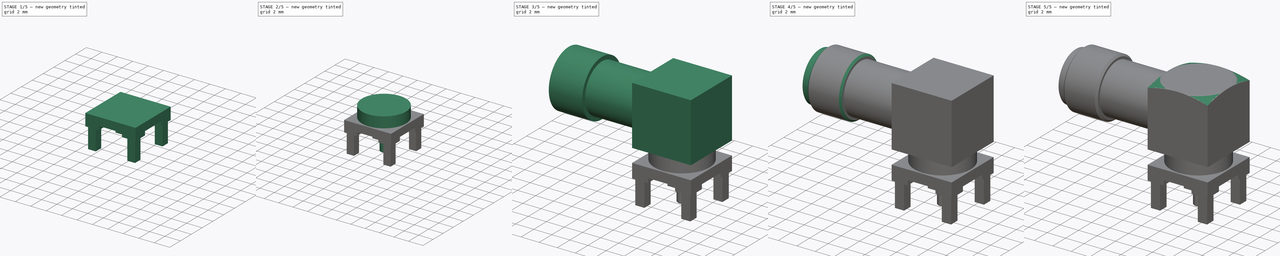
[diagram: build sequence overview — one tinted view per stage of 5, left to right]
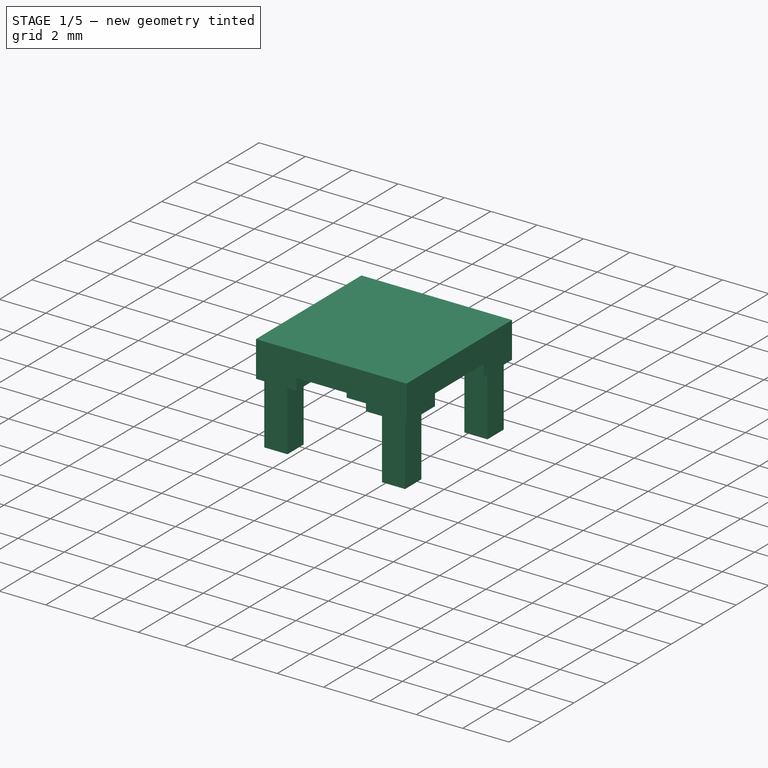
[diagram: stage 1 of 5 — iso view after this stage's code; geometry added in this stage tinted green]
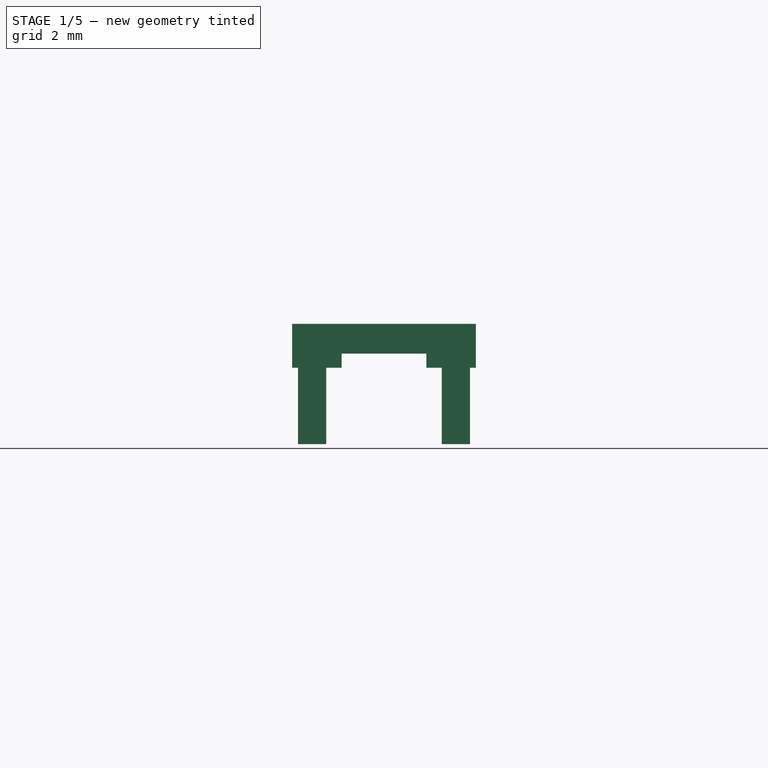
[diagram: stage 1 of 5 — front view after this stage's code; geometry added in this stage tinted green]
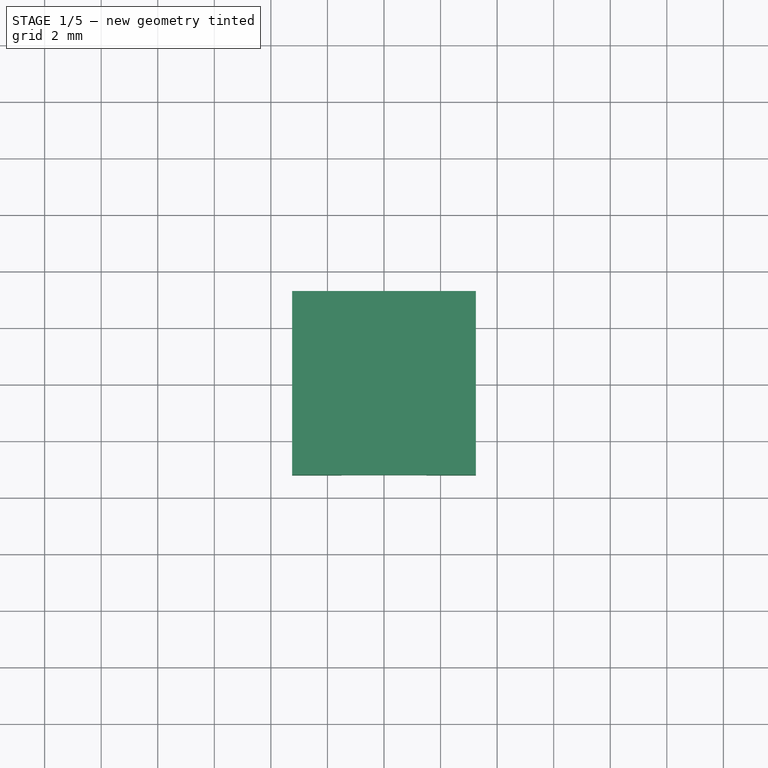
[diagram: stage 1 of 5 — top view after this stage's code; geometry added in this stage tinted green]
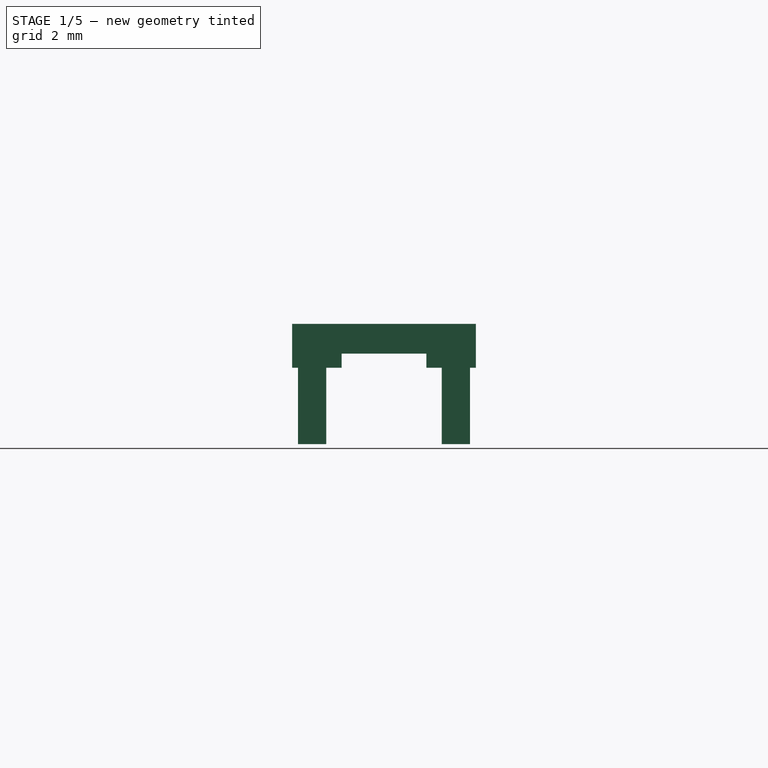
[diagram: stage 1 of 5 — right view after this stage's code; geometry added in this stage tinted green]
FCSTD DOCUMENT  (FreeCAD 0.19RUnknown)
Label: HJ-SMA003-v2
License: All rights reserved
LicenseURL: http://en.wikipedia.org/wiki/All_rights_reserved
objects: Sketcher::SketchObject×12, PartDesign::Pad×9, PartDesign::Chamfer×3, PartDesign::Pocket×2, PartDesign::Groove×1, PartDesign::Body×1
note: 43 computed .brp shape members not serialized (recipe doc carries the construction recipe); baked Part::Feature solids carry a one-line shape summary decoded from their .brp

FEATURE [Sketcher::SketchObject] Sketch
  AttachmentOffset = pos=(0,0,0.5) rot=(0,0,1;0rad)
  FullyConstrained = true
  MapMode = 5
  Placement = pos=(0,0,0.5) rot=(0,0,1;0rad)
  Support = -> [XY_Plane]
  sketch-geometry (4):
    g0: LineSegment StartX=-3.25 StartY=3.25 StartZ=0 EndX=3.25 EndY=3.25 EndZ=0
    g1: LineSegment StartX=3.25 StartY=3.25 StartZ=0 EndX=3.25 EndY=-3.25 EndZ=0
    g2: LineSegment StartX=3.25 StartY=-3.25 StartZ=0 EndX=-3.25 EndY=-3.25 EndZ=0
    g3: LineSegment StartX=-3.25 StartY=-3.25 StartZ=0 EndX=-3.25 EndY=3.25 EndZ=0
  constraints (11):
    c: Coincident(g0,g1)
    c: Coincident(g1,g2)
    c: Coincident(g2,g3)
    c: Coincident(g3,g0)
    c: Horizontal(g0)
    c: Horizontal(g2)
    c: Vertical(g1)
    c: Vertical(g3)
    c: Equal(g0,g1)
    c: Symmetric(g0,g1,g-1)
    c: DistanceY(g1,g1) = 6.5
FEATURE [PartDesign::Pad] Pad
  Direction = (1,1,1)
  Length = 1.05
  Length2 = 100
  Profile = -> Sketch
  Type = 0
FEATURE [Sketcher::SketchObject] Sketch001
  ExternalGeometry = -> [Pad]
  FullyConstrained = true
  MapMode = 5
  Placement = pos=(0,0,0.5) rot=(1,0,0;3.14159rad)
  Support = -> [Pad]
  sketch-geometry (16):
    g0: LineSegment StartX=-3.25 StartY=3.25 StartZ=0 EndX=-1.5 EndY=3.25 EndZ=0
    g1: LineSegment StartX=-1.5 StartY=3.25 StartZ=0 EndX=-1.5 EndY=1.5 EndZ=0
    g2: LineSegment StartX=-1.5 StartY=1.5 StartZ=0 EndX=-3.25 EndY=1.5 EndZ=0
    g3: LineSegment StartX=-3.25 StartY=1.5 StartZ=0 EndX=-3.25 EndY=3.25 EndZ=0
    g4: LineSegment StartX=-3.25 StartY=-3.25 StartZ=0 EndX=-1.5 EndY=-3.25 EndZ=0
    g5: LineSegment StartX=-1.5 StartY=-3.25 StartZ=0 EndX=-1.5 EndY=-1.5 EndZ=0
    g6: LineSegment StartX=-1.5 StartY=-1.5 StartZ=0 EndX=-3.25 EndY=-1.5 EndZ=0
    g7: LineSegment StartX=-3.25 StartY=-1.5 StartZ=0 EndX=-3.25 EndY=-3.25 EndZ=0
    g8: LineSegment StartX=3.25 StartY=-3.25 StartZ=0 EndX=1.5 EndY=-3.25 EndZ=0
    g9: LineSegment StartX=1.5 StartY=-3.25 StartZ=0 EndX=1.5 EndY=-1.5 EndZ=0
    g10: LineSegment StartX=1.5 StartY=-1.5 StartZ=0 EndX=3.25 EndY=-1.5 EndZ=0
    g11: LineSegment StartX=3.25 StartY=-1.5 StartZ=0 EndX=3.25 EndY=-3.25 EndZ=0
    g12: LineSegment StartX=3.25 StartY=3.25 StartZ=0 EndX=1.5 EndY=3.25 EndZ=0
    g13: LineSegment StartX=1.5 StartY=3.25 StartZ=0 EndX=1.5 EndY=1.5 EndZ=0
    g14: LineSegment StartX=1.5 StartY=1.5 StartZ=0 EndX=3.25 EndY=1.5 EndZ=0
    g15: LineSegment StartX=3.25 StartY=1.5 StartZ=0 EndX=3.25 EndY=3.25 EndZ=0
  constraints (44):
    c: Coincident(g0,g1)
    c: Coincident(g1,g2)
    c: Coincident(g2,g3)
    c: Coincident(g3,g0)
    c: Horizontal(g0)
    c: Horizontal(g2)
    c: Vertical(g1)
    c: Vertical(g3)
    c: Coincident(g0,g-3)
    c: Equal(g1,g2)
    c: DistanceY(g3,g3) = 1.75
    c: Coincident(g4,g5)
    c: Coincident(g5,g6)
    c: Coincident(g6,g7)
    c: Coincident(g7,g4)
    c: Horizontal(g4)
    c: Horizontal(g6)
    c: Vertical(g5)
    c: Vertical(g7)
    c: Coincident(g4,g-6)
    c: Coincident(g8,g9)
    c: Coincident(g9,g10)
    c: Coincident(g10,g11)
    c: Coincident(g11,g8)
    c: Horizontal(g8)
    c: Horizontal(g10)
    c: Vertical(g9)
    c: Vertical(g11)
    c: Coincident(g8,g-5)
    c: Coincident(g12,g13)
    c: Coincident(g13,g14)
    c: Coincident(g14,g15)
    c: Coincident(g15,g12)
    c: Horizontal(g12)
    c: Horizontal(g14)
    c: Vertical(g13)
    c: Vertical(g15)
    c: Coincident(g12,g-4)
    c: Equal(g12,g15)
    c: Equal(g11,g8)
    c: Equal(g4,g7)
    c: DistanceY(g7,g7) = 1.75
    c: DistanceY(g11,g11) = 1.75
    c: DistanceY(g15,g15) = 1.75
FEATURE [PartDesign::Pad] Pad001
  BaseFeature = -> Pad
  Direction = (1,1,1)
  Length = 0.5
  Length2 = 100
  Profile = -> Sketch001
  Type = 0
FEATURE [Sketcher::SketchObject] Sketch002
  FullyConstrained = true
  MapMode = 5
  Placement = pos=(0,0,0) rot=(1,0,0;3.14159rad)
  Support = -> [Pad001]
  sketch-geometry (20):
    g0: LineSegment StartX=-2.54 StartY=2.54 StartZ=0 EndX=2.54 EndY=2.54 EndZ=0
    g1: LineSegment StartX=2.54 StartY=2.54 StartZ=0 EndX=2.54 EndY=-2.54 EndZ=0
    g2: LineSegment StartX=2.54 StartY=-2.54 StartZ=0 EndX=-2.54 EndY=-2.54 EndZ=0
    g3: LineSegment StartX=-2.54 StartY=-2.54 StartZ=0 EndX=-2.54 EndY=2.54 EndZ=0
    g4: LineSegment StartX=-3.04 StartY=3.04 StartZ=0 EndX=-2.04 EndY=3.04 EndZ=0
    g5: LineSegment StartX=-2.04 StartY=3.04 StartZ=0 EndX=-2.04 EndY=2.04 EndZ=0
    g6: LineSegment StartX=-2.04 StartY=2.04 StartZ=0 EndX=-3.04 EndY=2.04 EndZ=0
    g7: LineSegment StartX=-3.04 StartY=2.04 StartZ=0 EndX=-3.04 EndY=3.04 EndZ=0
    g8: LineSegment StartX=2.04 StartY=3.04 StartZ=0 EndX=3.04 EndY=3.04 EndZ=0
    g9: LineSegment StartX=3.04 StartY=3.04 StartZ=0 EndX=3.04 EndY=2.04 EndZ=0
    g10: LineSegment StartX=3.04 StartY=2.04 StartZ=0 EndX=2.04 EndY=2.04 EndZ=0
    g11: LineSegment StartX=2.04 StartY=2.04 StartZ=0 EndX=2.04 EndY=3.04 EndZ=0
    g12: LineSegment StartX=3.04 StartY=-2.04 StartZ=0 EndX=2.04 EndY=-2.04 EndZ=0
    g13: LineSegment StartX=2.04 StartY=-2.04 StartZ=0 EndX=2.04 EndY=-3.04 EndZ=0
    g14: LineSegment StartX=2.04 StartY=-3.04 StartZ=0 EndX=3.04 EndY=-3.04 EndZ=0
    g15: LineSegment StartX=3.04 StartY=-3.04 StartZ=0 EndX=3.04 EndY=-2.04 EndZ=0
    g16: LineSegment StartX=-2.04 StartY=-2.04 StartZ=0 EndX=-3.04 EndY=-2.04 EndZ=0
    g17: LineSegment StartX=-3.04 StartY=-2.04 StartZ=0 EndX=-3.04 EndY=-3.04 EndZ=0
    g18: LineSegment StartX=-3.04 StartY=-3.04 StartZ=0 EndX=-2.04 EndY=-3.04 EndZ=0
    g19: LineSegment StartX=-2.04 StartY=-3.04 StartZ=0 EndX=-2.04 EndY=-2.04 EndZ=0
  constraints (55):
    c: Coincident(g0,g1)
    c: Coincident(g1,g2)
    c: Coincident(g2,g3)
    c: Coincident(g3,g0)
    c: Horizontal(g0)
    c: Horizontal(g2)
    c: Vertical(g1)
    c: Vertical(g3)
    c: Symmetric(g0,g1,g-1)
    c: DistanceX(g0,g0) = 5.08
    c: DistanceY(g3,g3) = 5.08
    c: Coincident(g4,g5)
    c: Coincident(g5,g6)
    c: Coincident(g6,g7)
    c: Coincident(g7,g4)
    c: Horizontal(g4)
    c: Horizontal(g6)
    c: Vertical(g5)
    c: Vertical(g7)
    c: Equal(g4,g7)
    c: DistanceY(g7,g7) = 1
    c: Symmetric(g5,g4,g0)
    c: Coincident(g8,g9)
    c: Coincident(g9,g10)
    c: Coincident(g10,g11)
    c: Coincident(g11,g8)
    c: Horizontal(g8)
    c: Horizontal(g10)
    c: Vertical(g9)
    c: Vertical(g11)
    c: Coincident(g12,g13)
    c: Coincident(g13,g14)
    c: Coincident(g14,g15)
    c: Coincident(g15,g12)
    c: Horizontal(g12)
    c: Horizontal(g14)
    c: Vertical(g13)
    c: Vertical(g15)
    c: Coincident(g16,g17)
    c: Coincident(g17,g18)
    c: Coincident(g18,g19)
    c: Coincident(g19,g16)
    c: Horizontal(g16)
    c: Horizontal(g18)
    c: Vertical(g17)
    c: Vertical(g19)
    c: Equal(g17,g16)
    c: Equal(g13,g12)
    c: Equal(g11,g8)
    c: Symmetric(g8,g9,g0)
    c: Symmetric(g14,g12,g1)
    c: Symmetric(g18,g16,g2)
    c: DistanceY(g17,g17) = 1
    c: DistanceY(g15,g15) = 1
    c: DistanceY(g9,g9) = 1
FEATURE [PartDesign::Pad] Pad002
  BaseFeature = -> Pad001
  Direction = (1,1,1)
  Length = 2.7
  Length2 = 100
  Profile = -> Sketch002
  Type = 0
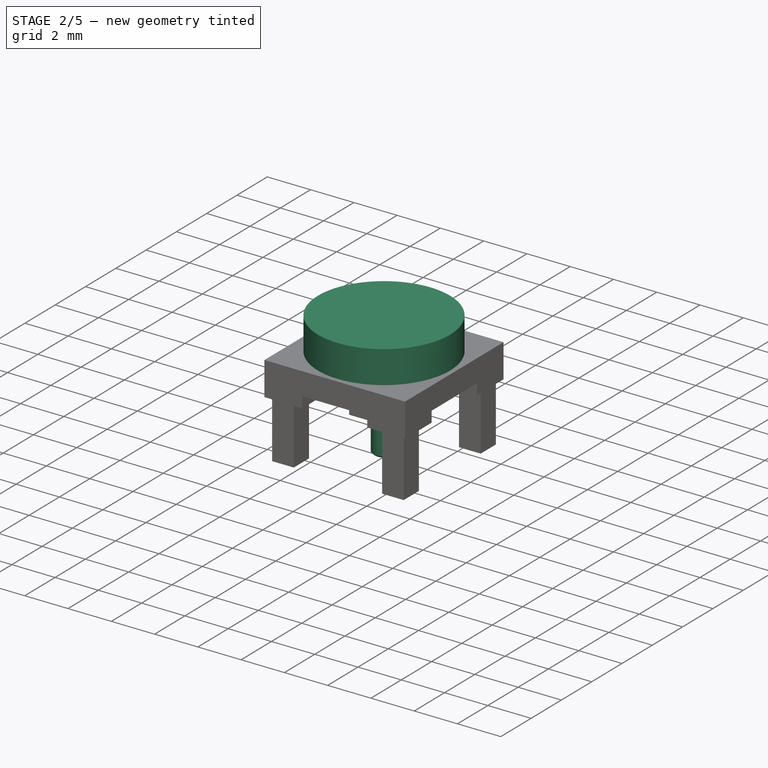
[diagram: stage 2 of 5 — iso view after this stage's code; geometry added in this stage tinted green]
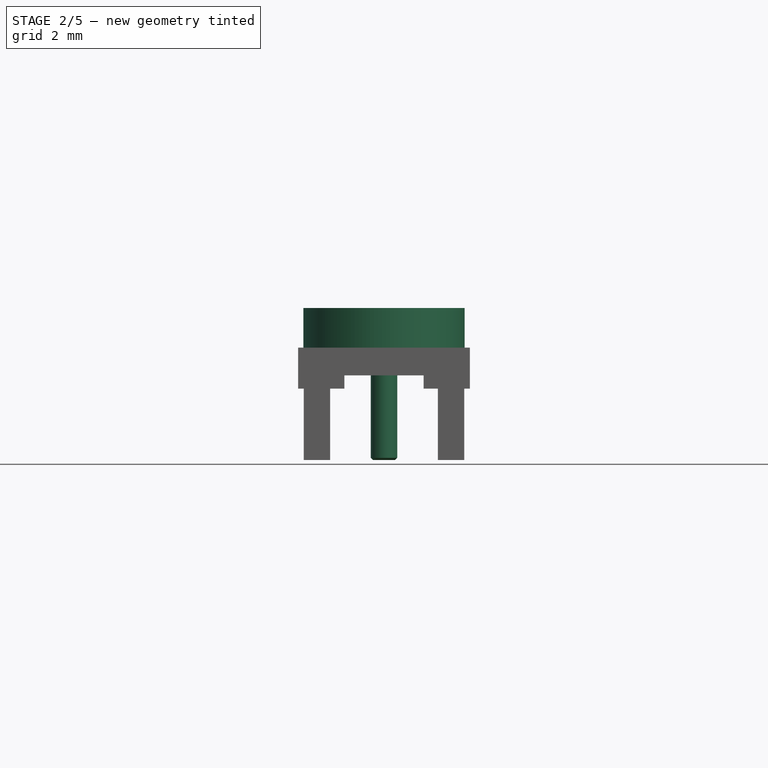
[diagram: stage 2 of 5 — front view after this stage's code; geometry added in this stage tinted green]
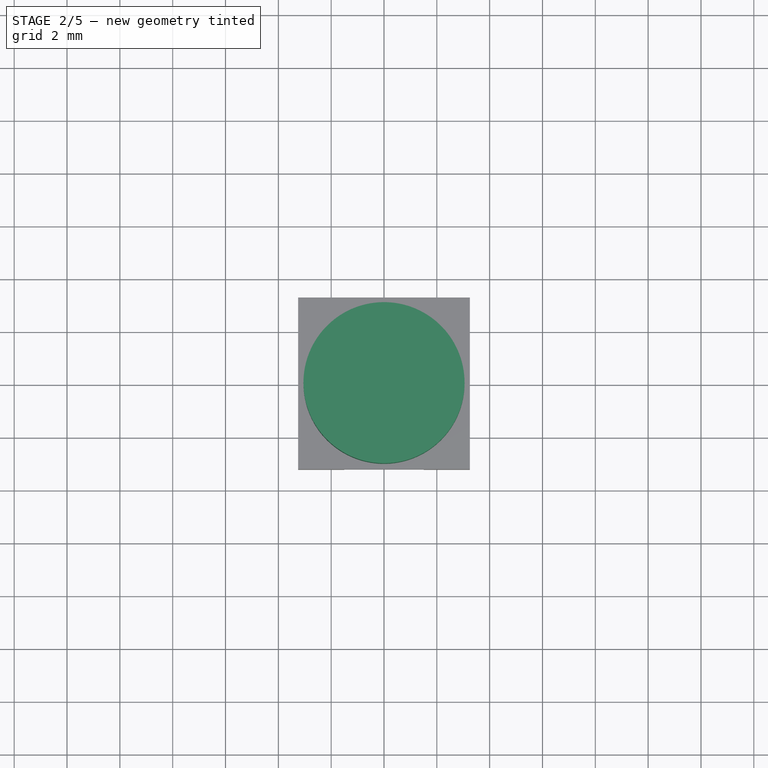
[diagram: stage 2 of 5 — top view after this stage's code; geometry added in this stage tinted green]
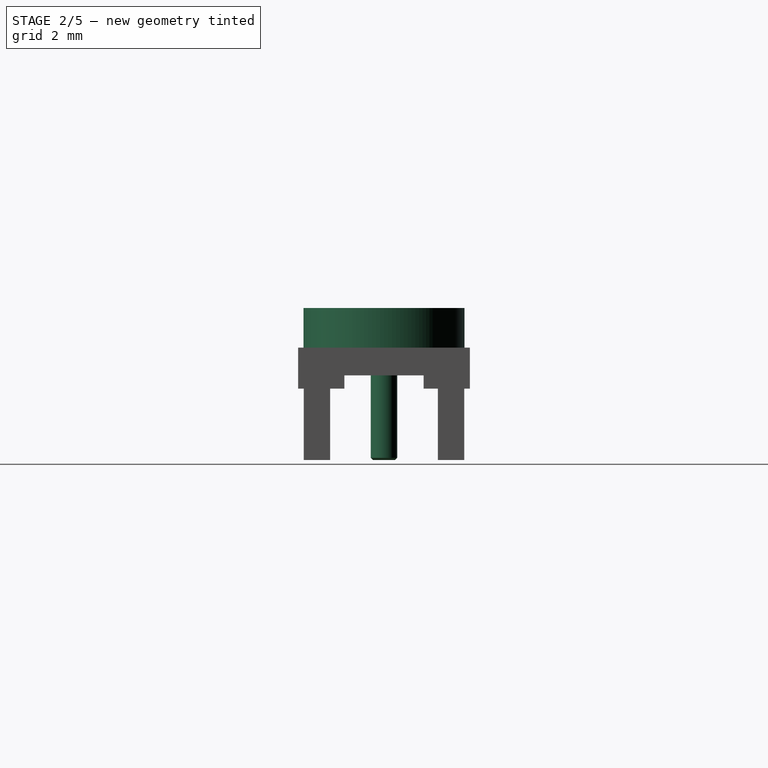
[diagram: stage 2 of 5 — right view after this stage's code; geometry added in this stage tinted green]
FEATURE [Sketcher::SketchObject] Sketch003
  FullyConstrained = true
  MapMode = 5
  Placement = pos=(0,0,0.5) rot=(1,0,0;3.14159rad)
  Support = -> [Pad002]
  sketch-geometry (1):
    g0: Circle CenterX=0 CenterY=0 CenterZ=0 NormalX=0 NormalY=0 NormalZ=1 AngleXU=0 Radius=0.5
  constraints (2):
    c: Coincident(g0,g-1)
    c: Diameter(g0) = 1
FEATURE [PartDesign::Pad] Pad003
  BaseFeature = -> Pad002
  Direction = (1,1,1)
  Length = 3.2
  Length2 = 100
  Profile = -> Sketch003
  Type = 0
FEATURE [PartDesign::Chamfer] Chamfer
  Angle = 45
  Base = -> Pad003 [Edge65]
  BaseFeature = -> Pad003
  ChamferType = 0
  FlipDirection = false
  Size = 0.08
  Size2 = 1
  SupportTransform = false
FEATURE [Sketcher::SketchObject] Sketch004
  FullyConstrained = true
  MapMode = 5
  Placement = pos=(0,0,1.55) rot=(0,0,1;0rad)
  Support = -> [Chamfer]
  sketch-geometry (1):
    g0: Circle CenterX=0 CenterY=0 CenterZ=0 NormalX=0 NormalY=0 NormalZ=1 AngleXU=0 Radius=3.05
  constraints (2):
    c: Coincident(g0,g-1)
    c: Diameter(g0) = 6.1
FEATURE [PartDesign::Pad] Pad004
  BaseFeature = -> Chamfer
  Direction = (1,1,1)
  Length = 1.5
  Length2 = 100
  Profile = -> Sketch004
  Type = 0
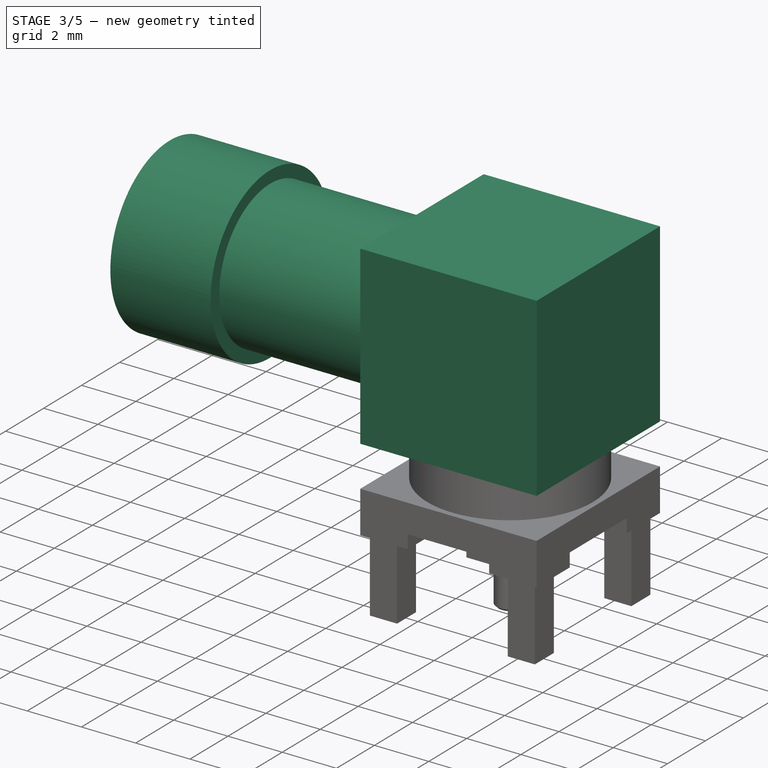
[diagram: stage 3 of 5 — iso view after this stage's code; geometry added in this stage tinted green]
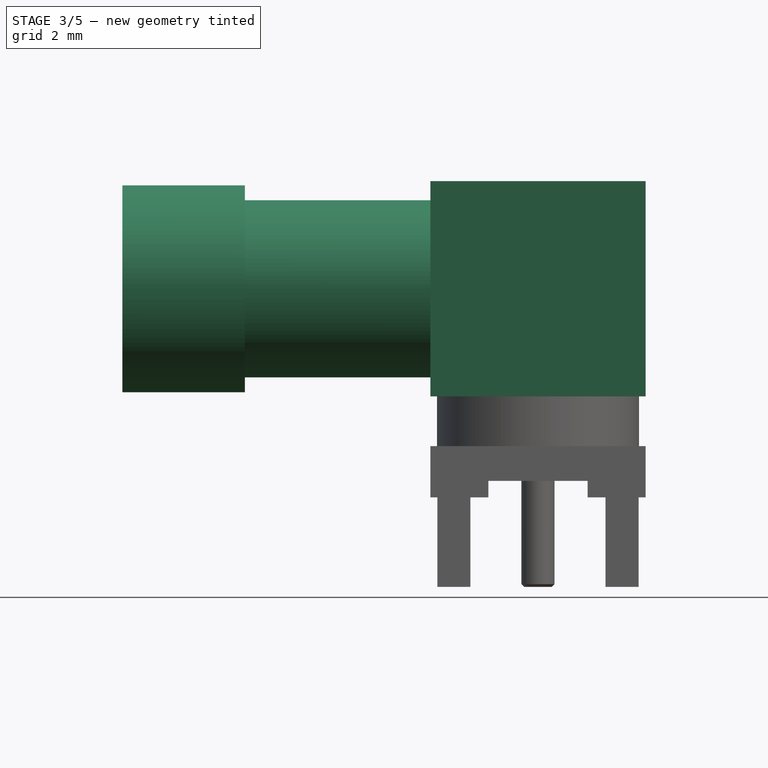
[diagram: stage 3 of 5 — front view after this stage's code; geometry added in this stage tinted green]
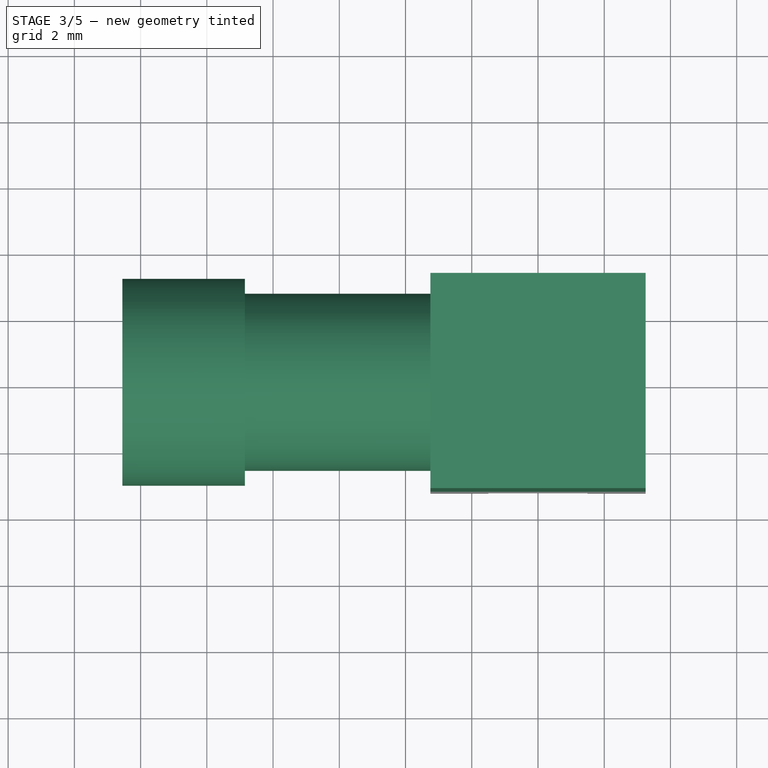
[diagram: stage 3 of 5 — top view after this stage's code; geometry added in this stage tinted green]
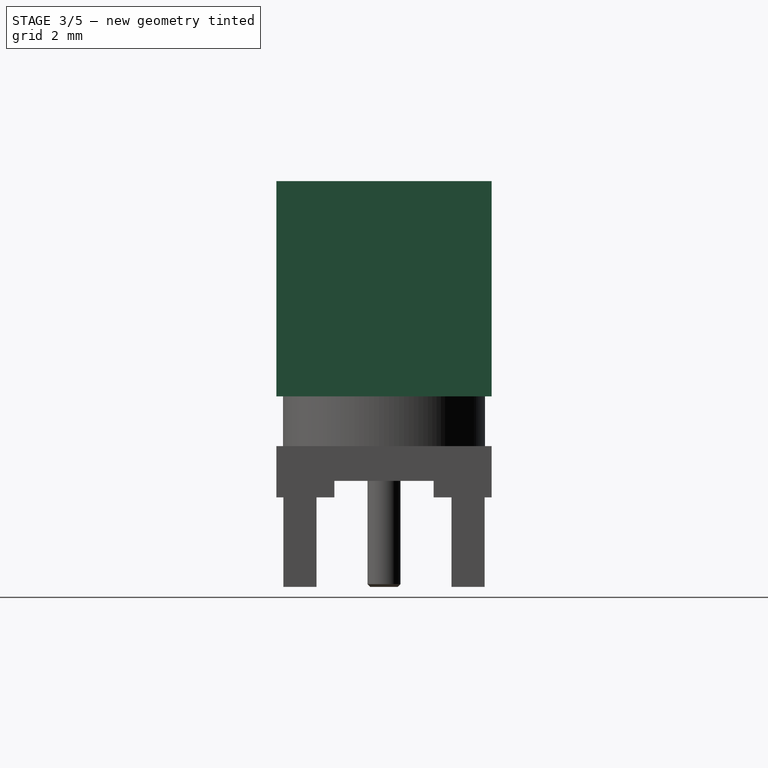
[diagram: stage 3 of 5 — right view after this stage's code; geometry added in this stage tinted green]
FEATURE [Sketcher::SketchObject] Sketch005
  FullyConstrained = true
  MapMode = 5
  Placement = pos=(0,0,3.05) rot=(0,0,1;0rad)
  Support = -> [Pad004]
  sketch-geometry (4):
    g0: LineSegment StartX=-3.25 StartY=3.25 StartZ=0 EndX=3.25 EndY=3.25 EndZ=0
    g1: LineSegment StartX=3.25 StartY=3.25 StartZ=0 EndX=3.25 EndY=-3.25 EndZ=0
    g2: LineSegment StartX=3.25 StartY=-3.25 StartZ=0 EndX=-3.25 EndY=-3.25 EndZ=0
    g3: LineSegment StartX=-3.25 StartY=-3.25 StartZ=0 EndX=-3.25 EndY=3.25 EndZ=0
  constraints (11):
    c: Coincident(g0,g1)
    c: Coincident(g1,g2)
    c: Coincident(g2,g3)
    c: Coincident(g3,g0)
    c: Horizontal(g0)
    c: Horizontal(g2)
    c: Vertical(g1)
    c: Vertical(g3)
    c: Equal(g0,g3)
    c: DistanceY(g3,g3) = 6.5
    c: Symmetric(g1,g0,g-1)
FEATURE [PartDesign::Pad] Pad005
  BaseFeature = -> Pad004
  Direction = (1,1,1)
  Length = 6.5
  Length2 = 100
  Profile = -> Sketch005
  Type = 0
FEATURE [Sketcher::SketchObject] Sketch006
  ExternalGeometry = -> [Pad005]
  FullyConstrained = true
  MapMode = 5
  Placement = pos=(-3.25,0,0) rot=(0.57735,-0.57735,-0.57735;2.0944rad)
  Support = -> [Pad005]
  sketch-geometry (2):
    g0: Circle CenterX=3.53e-14 CenterY=6.3 CenterZ=0 NormalX=0 NormalY=0 NormalZ=1 AngleXU=0 Radius=4.59619
    g1: Circle CenterX=3.53e-14 CenterY=6.3 CenterZ=0 NormalX=0 NormalY=0 NormalZ=1 AngleXU=0 Radius=2.675
  constraints (6):
    c: PointOnObject(g-4,g0)
    c: PointOnObject(g-3,g0)
    c: PointOnObject(g-6,g0)
    c: Coincident(g1,g0)
    c: Block(g1)
    c: Diameter(g1) = 5.35
FEATURE [PartDesign::Pad] Pad006
  BaseFeature = -> Pad005
  Direction = (1,1,1)
  Length = 5.6
  Length2 = 100
  Profile = -> Sketch006
  Type = 0
FEATURE [Sketcher::SketchObject] Sketch007
  ExternalGeometry = -> [Pad006]
  FullyConstrained = true
  MapMode = 5
  Placement = pos=(-8.85,0,0) rot=(0.57735,-0.57735,-0.57735;2.0944rad)
  Support = -> [Pad006]
  sketch-geometry (1):
    g0: Circle CenterX=0 CenterY=6.3 CenterZ=0 NormalX=0 NormalY=0 NormalZ=1 AngleXU=0 Radius=3.125
  constraints (2):
    c: Coincident(g0,g-3)
    c: Diameter(g0) = 6.25
FEATURE [PartDesign::Pad] Pad007
  BaseFeature = -> Pad006
  Direction = (1,1,1)
  Length = 3.7
  Length2 = 100
  Profile = -> Sketch007
  Type = 0
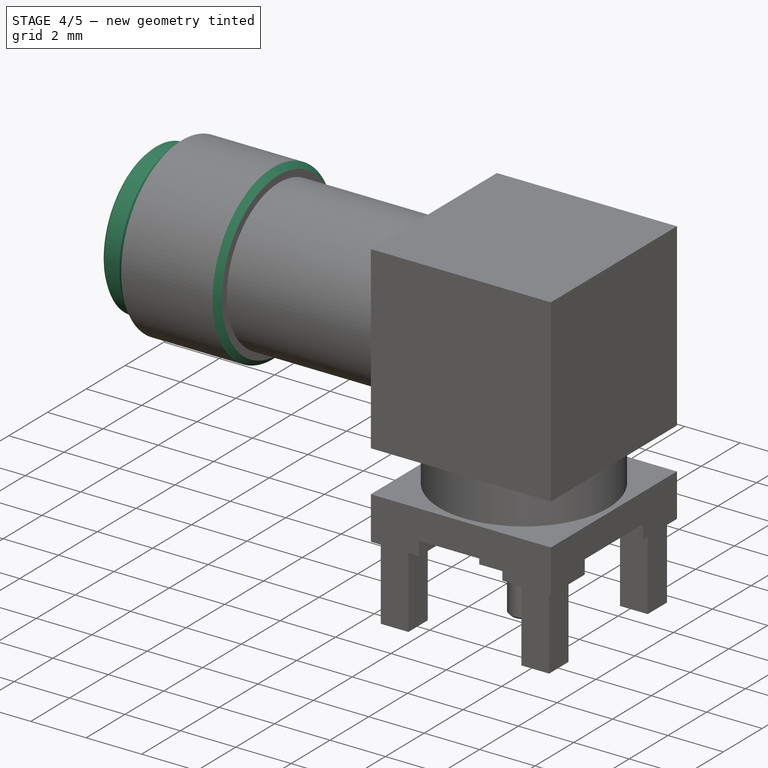
[diagram: stage 4 of 5 — iso view after this stage's code; geometry added in this stage tinted green]
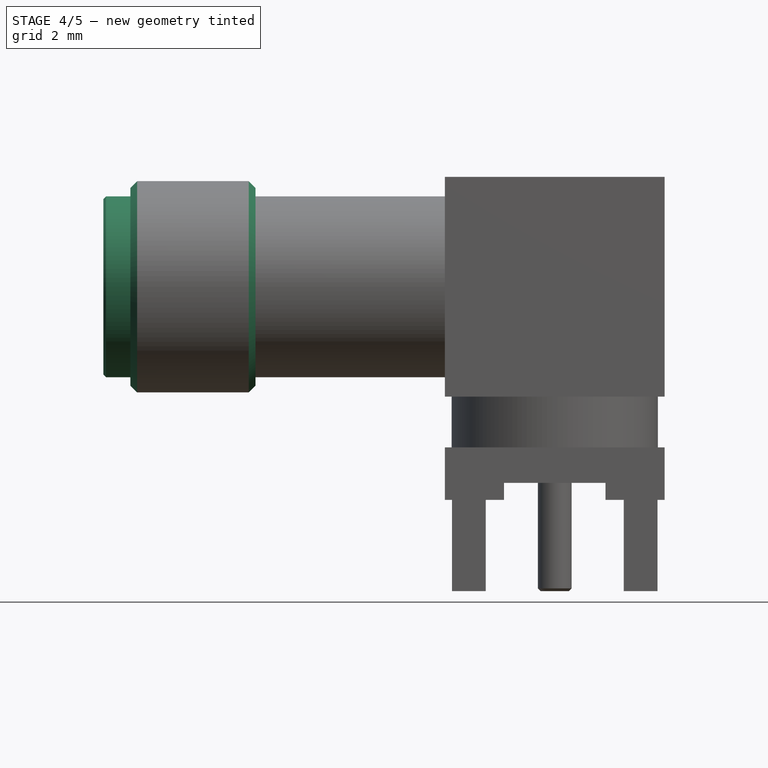
[diagram: stage 4 of 5 — front view after this stage's code; geometry added in this stage tinted green]
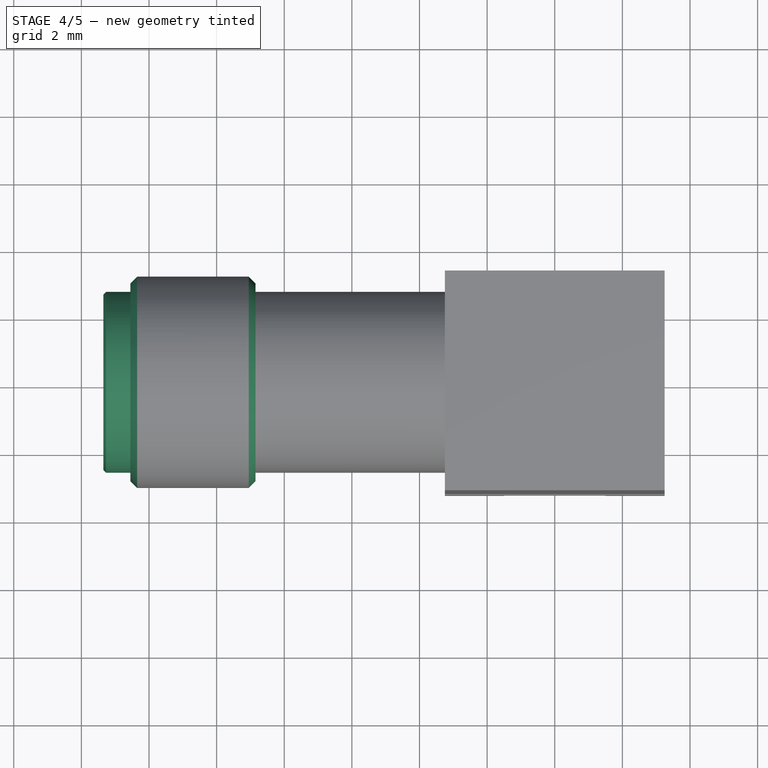
[diagram: stage 4 of 5 — top view after this stage's code; geometry added in this stage tinted green]
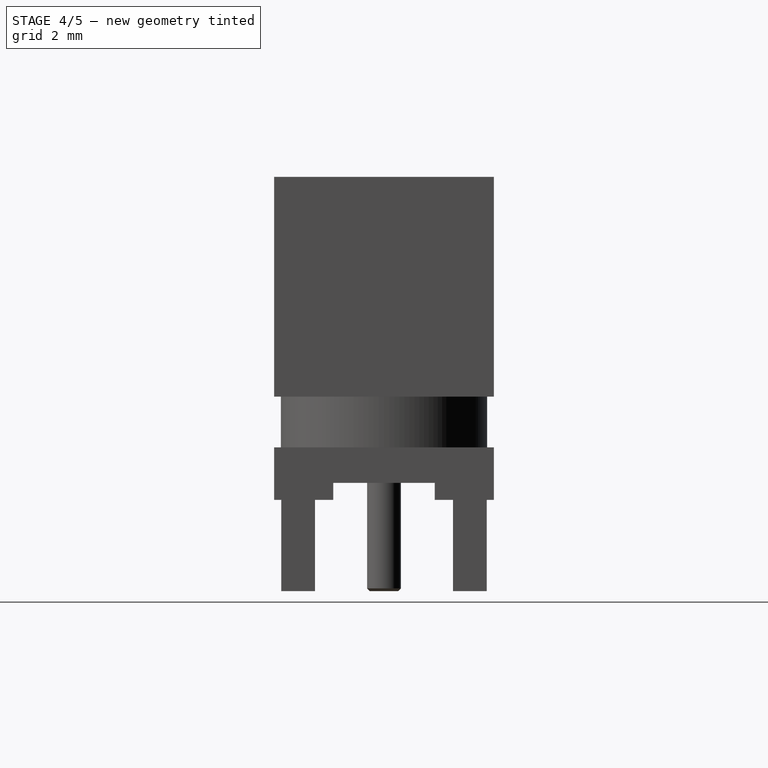
[diagram: stage 4 of 5 — right view after this stage's code; geometry added in this stage tinted green]
FEATURE [Sketcher::SketchObject] Sketch008
  ExternalGeometry = -> [Pad007]
  FullyConstrained = true
  MapMode = 5
  Placement = pos=(-12.55,0,0) rot=(0.57735,-0.57735,-0.57735;2.0944rad)
  Support = -> [Pad007]
  sketch-geometry (1):
    g0: Circle CenterX=0 CenterY=6.3 CenterZ=0 NormalX=0 NormalY=0 NormalZ=1 AngleXU=0 Radius=2.675
  constraints (2):
    c: Coincident(g0,g-3)
    c: Diameter(g0) = 5.35
FEATURE [PartDesign::Pad] Pad008
  BaseFeature = -> Pad007
  Direction = (1,1,1)
  Length = 0.8
  Length2 = 100
  Profile = -> Sketch008
  Type = 0
FEATURE [PartDesign::Chamfer] Chamfer001
  Angle = 45
  Base = -> Pad008 [Edge9]
  BaseFeature = -> Pad008
  ChamferType = 0
  FlipDirection = false
  Size = 0.08
  Size2 = 1
  SupportTransform = false
FEATURE [PartDesign::Chamfer] Chamfer002
  Angle = 45
  Base = -> Chamfer001 [Edge8,Edge6]
  BaseFeature = -> Chamfer001
  ChamferType = 0
  FlipDirection = false
  Size = 0.2
  Size2 = 1
  SupportTransform = false
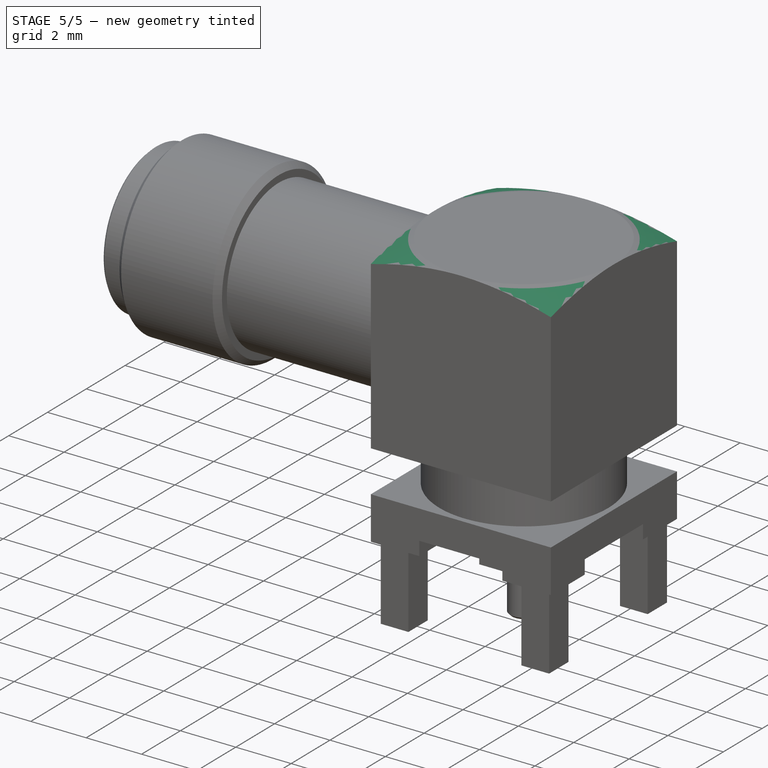
[diagram: stage 5 of 5 — iso view after this stage's code; geometry added in this stage tinted green]
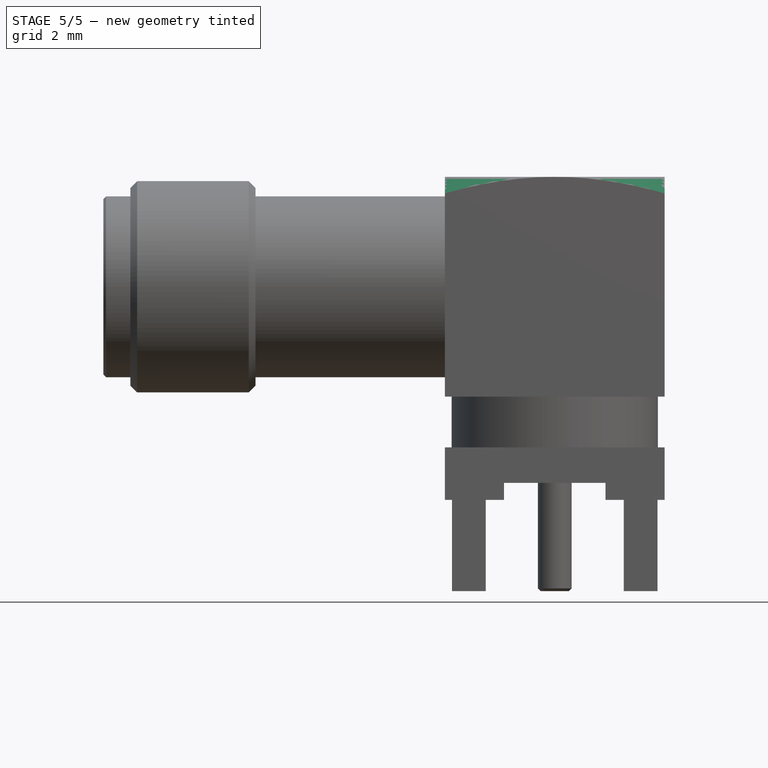
[diagram: stage 5 of 5 — front view after this stage's code; geometry added in this stage tinted green]
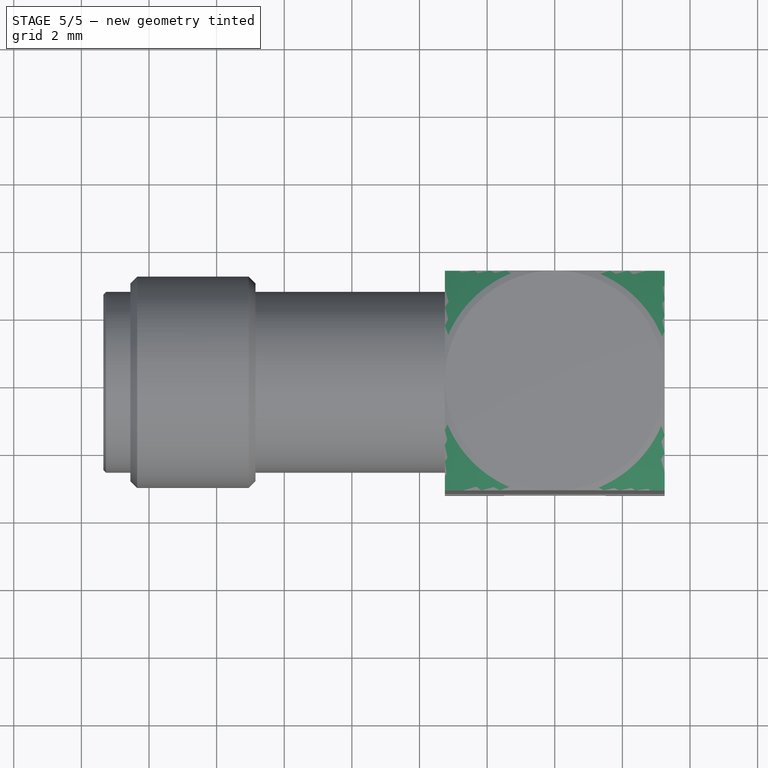
[diagram: stage 5 of 5 — top view after this stage's code; geometry added in this stage tinted green]
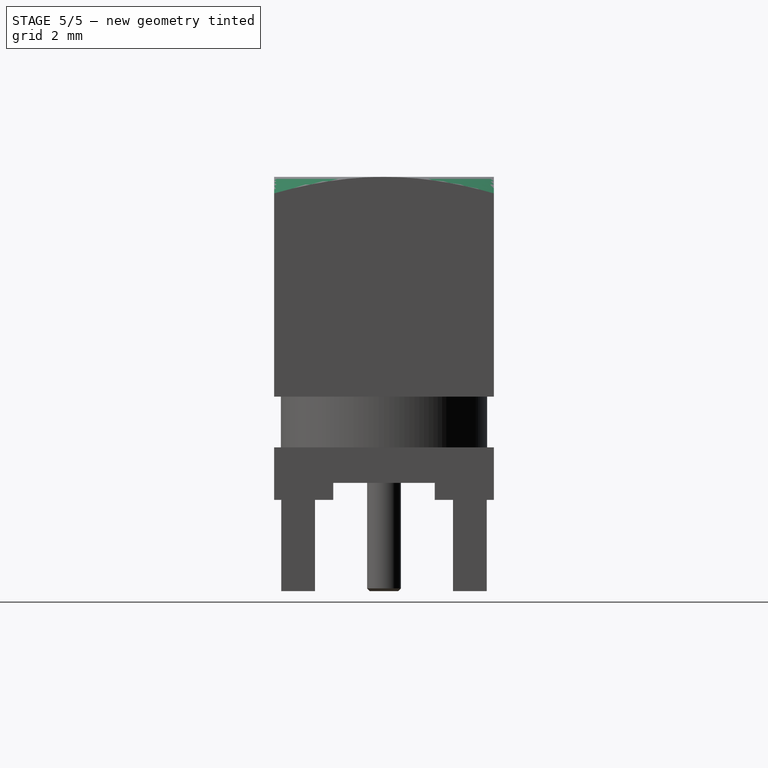
[diagram: stage 5 of 5 — right view after this stage's code; geometry added in this stage tinted green]
FEATURE [Sketcher::SketchObject] Sketch009
  ExternalGeometry = -> [Chamfer002]
  FullyConstrained = true
  MapMode = 5
  Placement = pos=(-13.35,0,0) rot=(0.57735,-0.57735,-0.57735;2.0944rad)
  Support = -> [Chamfer002]
  sketch-geometry (1):
    g0: Circle CenterX=0 CenterY=6.3 CenterZ=0 NormalX=0 NormalY=0 NormalZ=1 AngleXU=0 Radius=2.3
  constraints (2):
    c: Coincident(g0,g-3)
    c: Diameter(g0) = 4.6
FEATURE [PartDesign::Pocket] Pocket
  BaseFeature = -> Chamfer002
  Length = 2
  Length2 = 100
  Profile = -> Sketch009
  Type = 0
FEATURE [Sketcher::SketchObject] Sketch010
  ExternalGeometry = -> [Pocket]
  FullyConstrained = true
  MapMode = 5
  Placement = pos=(-11.35,0,0) rot=(0.57735,-0.57735,-0.57735;2.0944rad)
  Support = -> [Pocket]
  sketch-geometry (1):
    g0: Circle CenterX=0 CenterY=6.3 CenterZ=0 NormalX=0 NormalY=0 NormalZ=1 AngleXU=0 Radius=0.25
  constraints (2):
    c: Coincident(g0,g-3)
    c: Diameter(g0) = 0.5
FEATURE [PartDesign::Pocket] Pocket001
  BaseFeature = -> Pocket
  Length = 3
  Length2 = 100
  Profile = -> Sketch010
  Type = 0
FEATURE [Sketcher::SketchObject] Sketch011
  ExternalGeometry = -> [Pocket001]
  FullyConstrained = false
  MapMode = 5
  Placement = pos=(0,0,0) rot=(1,0,0;1.5708rad)
  Support = -> [XZ_Plane]
  sketch-geometry (4):
    g0: ArcOfCircle CenterX=2.61605 CenterY=-8.72109 CenterZ=0 NormalX=0 NormalY=0 NormalZ=1 AngleXU=0 Radius=19.1897 StartAngle=1.70755 EndAngle=1.96089
    g1: LineSegment StartX=-4.68128 StartY=9.02693 StartZ=0 EndX=-4.68128 EndY=13.8402 EndZ=0
    g2: LineSegment StartX=-4.68128 StartY=13.8402 StartZ=0 EndX=0 EndY=13.8402 EndZ=0
    g3: LineSegment StartX=0 StartY=13.8402 StartZ=0 EndX=0 EndY=10.2894 EndZ=0
  constraints (9):
    c: PointOnObject(g-3,g0)
    c: Coincident(g1,g0)
    c: Vertical(g1)
    c: Coincident(g2,g1)
    c: Horizontal(g2)
    c: Coincident(g3,g2)
    c: Coincident(g3,g0)
    c: Vertical(g3)
    c: PointOnObject(g2,g-2)
FEATURE [PartDesign::Groove] Groove
  Angle = 360
  Axis = (0,-2e-16,1)
  Base = (0,0,0)
  BaseFeature = -> Pocket001
  Profile = -> Sketch011
  ReferenceAxis = -> Sketch011 [V_Axis]
  Reversed = true
FEATURE [PartDesign::Body] Body
  Group = -> [Sketch,Pad,Sketch001,Pad001,Sketch002,Pad002,Sketch003,Pad003,Chamfer,Sketch004,Pad004,Sketch005,Pad005,Sketch006,Pad006,Sketch007,Pad007,Sketch008,Pad008,Chamfer001,Chamfer002,Sketch009,Pocket,Sketch010,Pocket001,Sketch011,Groove]
  Origin = -> Origin
  Tip = -> Groove
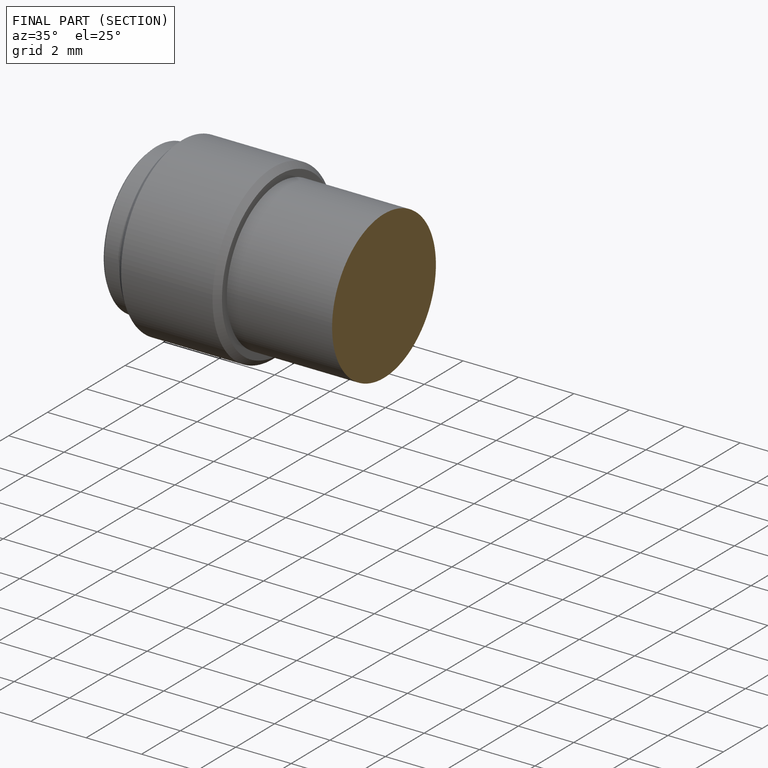
[diagram: finished part — half-section view (interior)]
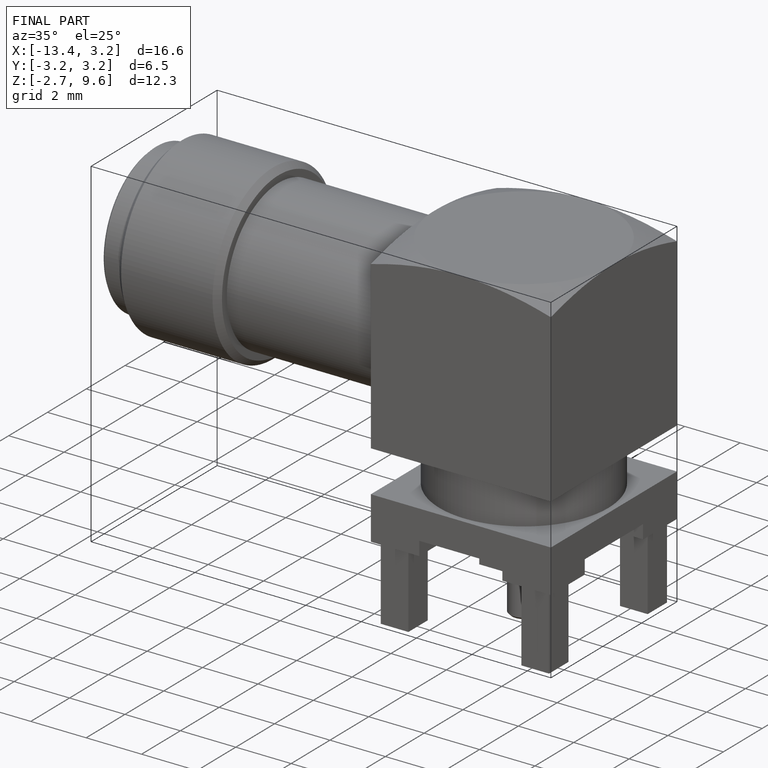
[diagram: finished part — iso view with bounding-box wireframe]
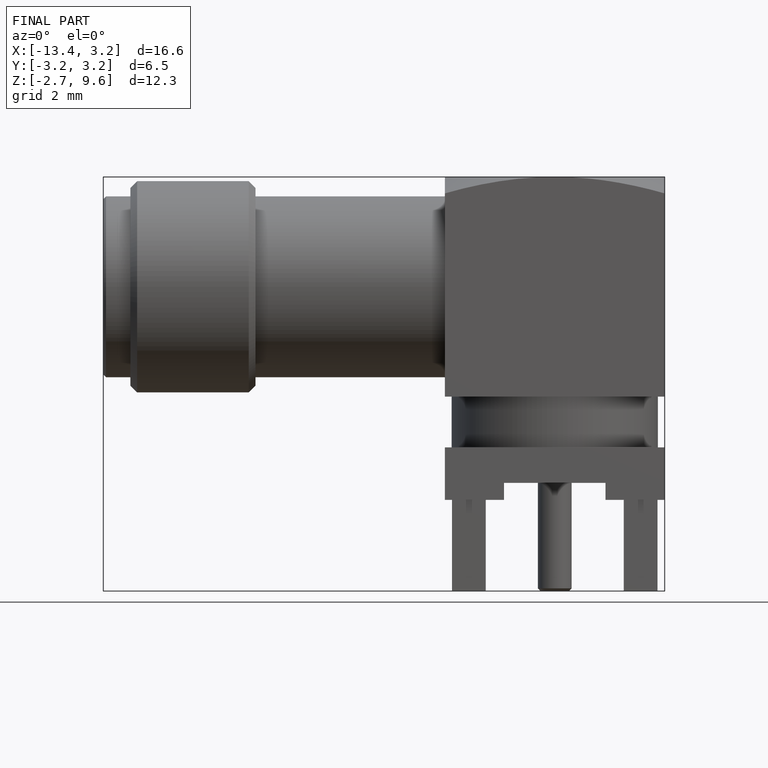
[diagram: finished part — front view with bounding-box wireframe]
